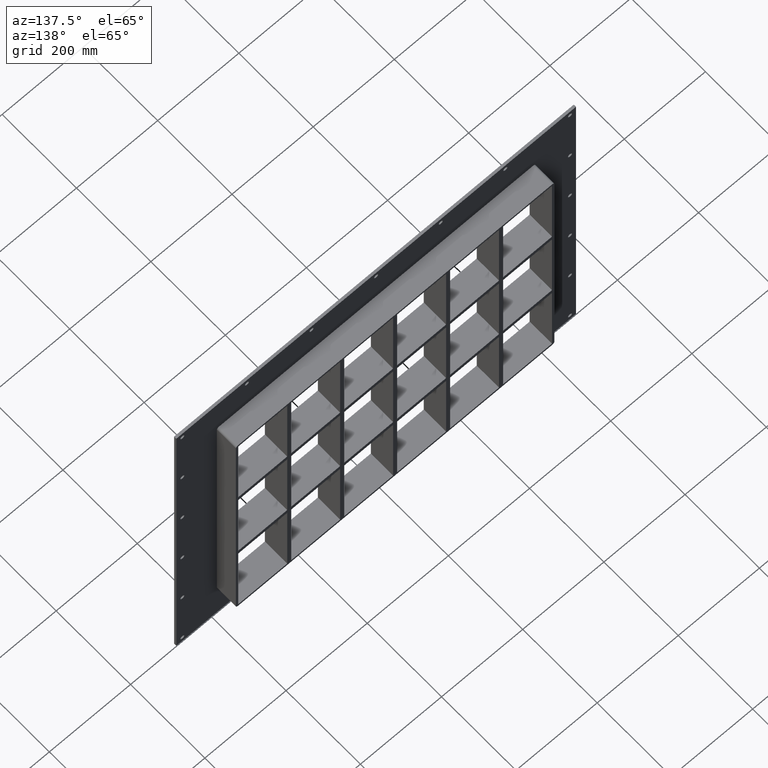
[diagram: clean part render]
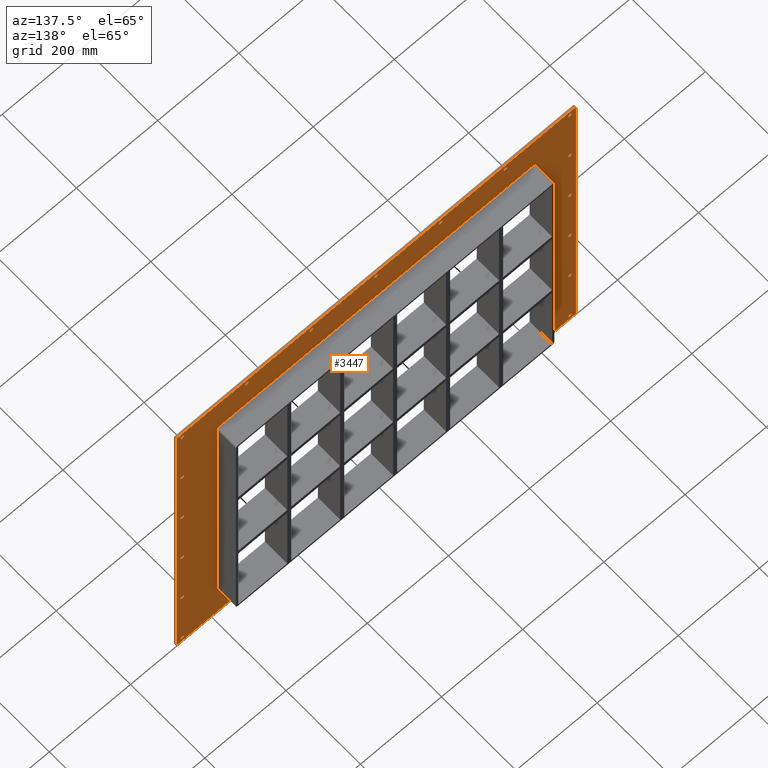
[diagram: same view with one face highlighted and labeled with its STEP entity id]
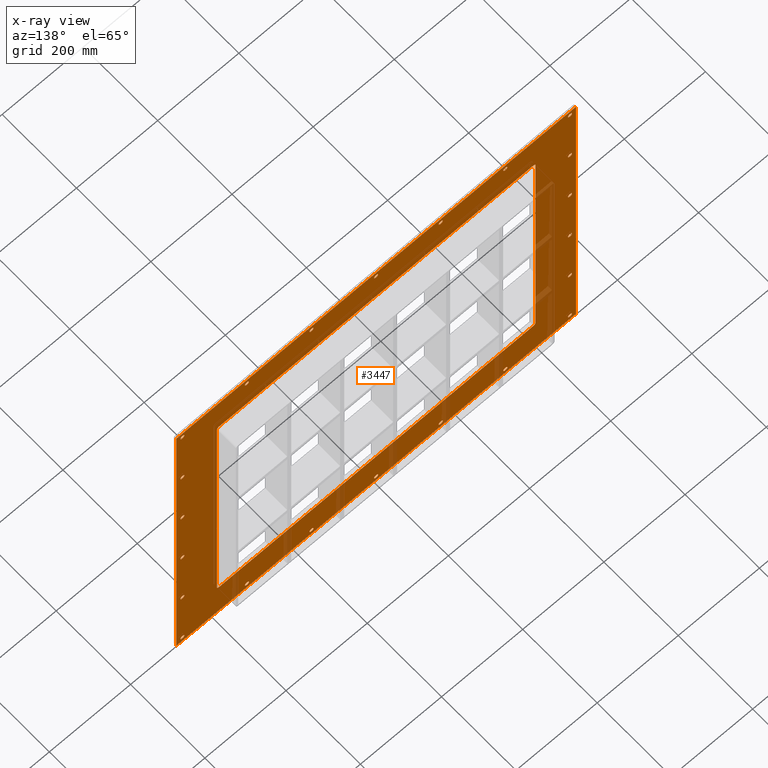
[diagram: x-ray of the same camera — body ghosted, the highlighted face saturated]
A machine part, auxiliary view. The second image highlights one B-rep face of the part: STEP entity #3447.
The next image is the same camera in x-ray: the body ghosted, the highlighted face saturated — about 7% of this face is hidden behind the body in this view.
In plain terms, the highlighted planar face has unit normal (0, 1, 0).
Its self-contained STEP definition (entity closure, byte-faithful):
#73=CARTESIAN_POINT('',(-482.50000000000006,5.999999999999943,-430.00000000000011));
#74=VERTEX_POINT('',#73);
#75=CARTESIAN_POINT('',(-477.50000000000006,5.999999999999943,-430.00000000000011));
#76=DIRECTION('',(0.0,-1.0,0.0));
#77=DIRECTION('',(1.0,0.0,0.0));
#78=AXIS2_PLACEMENT_3D('',#75,#76,#77);
#79=CIRCLE('',#78,5.0);
#80=EDGE_CURVE('',#74,#74,#79,.T.);
#101=CARTESIAN_POINT('',(472.69999999999987,5.999999999999943,-258.00000000000006));
#102=VERTEX_POINT('',#101);
#103=CARTESIAN_POINT('',(477.69999999999987,5.999999999999943,-258.00000000000006));
#104=DIRECTION('',(0.0,-1.0,0.0));
#105=DIRECTION('',(1.0,0.0,0.0));
#106=AXIS2_PLACEMENT_3D('',#103,#104,#105);
#107=CIRCLE('',#106,5.0);
#108=EDGE_CURVE('',#102,#102,#107,.T.);
#129=CARTESIAN_POINT('',(-482.50000000000006,5.999999999999943,-258.00000000000006));
#130=VERTEX_POINT('',#129);
#131=CARTESIAN_POINT('',(-477.50000000000006,5.999999999999943,-258.00000000000006));
#132=DIRECTION('',(0.0,-1.0,0.0));
#133=DIRECTION('',(1.0,0.0,0.0));
#134=AXIS2_PLACEMENT_3D('',#131,#132,#133);
#135=CIRCLE('',#134,5.0);
#136=EDGE_CURVE('',#130,#130,#135,.T.);
#157=CARTESIAN_POINT('',(472.69999999999987,5.999999999999943,-86.000000000000057));
#158=VERTEX_POINT('',#157);
#159=CARTESIAN_POINT('',(477.69999999999987,5.999999999999943,-86.000000000000057));
#160=DIRECTION('',(0.0,-1.0,0.0));
#161=DIRECTION('',(1.0,0.0,0.0));
#162=AXIS2_PLACEMENT_3D('',#159,#160,#161);
#163=CIRCLE('',#162,5.0);
#164=EDGE_CURVE('',#158,#158,#163,.T.);
#185=CARTESIAN_POINT('',(-482.50000000000006,5.999999999999943,-86.000000000000057));
#186=VERTEX_POINT('',#185);
#187=CARTESIAN_POINT('',(-477.50000000000006,5.999999999999943,-86.000000000000057));
#188=DIRECTION('',(0.0,-1.0,0.0));
#189=DIRECTION('',(1.0,0.0,0.0));
#190=AXIS2_PLACEMENT_3D('',#187,#188,#189);
#191=CIRCLE('',#190,5.0);
#192=EDGE_CURVE('',#186,#186,#191,.T.);
#213=CARTESIAN_POINT('',(472.69999999999987,5.999999999999943,85.999999999999872));
#214=VERTEX_POINT('',#213);
#215=CARTESIAN_POINT('',(477.69999999999987,5.999999999999943,85.999999999999872));
#216=DIRECTION('',(0.0,-1.0,0.0));
#217=DIRECTION('',(1.0,0.0,0.0));
#218=AXIS2_PLACEMENT_3D('',#215,#216,#217);
#219=CIRCLE('',#218,5.0);
#220=EDGE_CURVE('',#214,#214,#219,.T.);
#241=CARTESIAN_POINT('',(-482.50000000000006,5.999999999999943,85.999999999999872));
#242=VERTEX_POINT('',#241);
#243=CARTESIAN_POINT('',(-477.50000000000006,5.999999999999943,85.999999999999872));
#244=DIRECTION('',(0.0,-1.0,0.0));
#245=DIRECTION('',(1.0,0.0,0.0));
#246=AXIS2_PLACEMENT_3D('',#243,#244,#245);
#247=CIRCLE('',#246,5.0);
#248=EDGE_CURVE('',#242,#242,#247,.T.);
#269=CARTESIAN_POINT('',(472.69999999999987,5.999999999999943,257.99999999999989));
#270=VERTEX_POINT('',#269);
#271=CARTESIAN_POINT('',(477.69999999999987,5.999999999999943,257.99999999999989));
#272=DIRECTION('',(0.0,-1.0,0.0));
#273=DIRECTION('',(1.0,0.0,0.0));
#274=AXIS2_PLACEMENT_3D('',#271,#272,#273);
#275=CIRCLE('',#274,5.0);
#276=EDGE_CURVE('',#270,#270,#275,.T.);
#297=CARTESIAN_POINT('',(-482.50000000000006,5.999999999999943,257.99999999999989));
#298=VERTEX_POINT('',#297);
#299=CARTESIAN_POINT('',(-477.50000000000006,5.999999999999943,257.99999999999989));
#300=DIRECTION('',(0.0,-1.0,0.0));
#301=DIRECTION('',(1.0,0.0,0.0));
#302=AXIS2_PLACEMENT_3D('',#299,#300,#301);
#303=CIRCLE('',#302,5.0);
#304=EDGE_CURVE('',#298,#298,#303,.T.);
#325=CARTESIAN_POINT('',(-323.30000000000007,5.999999999999943,429.99999999999989));
#326=VERTEX_POINT('',#325);
#327=CARTESIAN_POINT('',(-318.30000000000007,5.999999999999943,429.99999999999989));
#328=DIRECTION('',(0.0,-1.0,0.0));
#329=DIRECTION('',(1.0,0.0,0.0));
#330=AXIS2_PLACEMENT_3D('',#327,#328,#329);
#331=CIRCLE('',#330,5.0);
#332=EDGE_CURVE('',#326,#326,#331,.T.);
#353=CARTESIAN_POINT('',(-323.30000000000007,5.999999999999943,-430.00000000000011));
#354=VERTEX_POINT('',#353);
#355=CARTESIAN_POINT('',(-318.30000000000007,5.999999999999943,-430.00000000000011));
#356=DIRECTION('',(0.0,-1.0,0.0));
#357=DIRECTION('',(1.0,0.0,0.0));
#358=AXIS2_PLACEMENT_3D('',#355,#356,#357);
#359=CIRCLE('',#358,5.0);
#360=EDGE_CURVE('',#354,#354,#359,.T.);
#381=CARTESIAN_POINT('',(-164.10000000000011,5.999999999999943,429.99999999999989));
#382=VERTEX_POINT('',#381);
#383=CARTESIAN_POINT('',(-159.10000000000008,5.999999999999943,429.99999999999989));
#384=DIRECTION('',(0.0,-1.0,0.0));
#385=DIRECTION('',(1.0,0.0,0.0));
#386=AXIS2_PLACEMENT_3D('',#383,#384,#385);
#387=CIRCLE('',#386,5.0);
#388=EDGE_CURVE('',#382,#382,#387,.T.);
#409=CARTESIAN_POINT('',(-164.10000000000011,5.999999999999943,-430.00000000000011));
#410=VERTEX_POINT('',#409);
#411=CARTESIAN_POINT('',(-159.10000000000008,5.999999999999943,-430.00000000000011));
#412=DIRECTION('',(0.0,-1.0,0.0));
#413=DIRECTION('',(1.0,0.0,0.0));
#414=AXIS2_PLACEMENT_3D('',#411,#412,#413);
#415=CIRCLE('',#414,5.0);
#416=EDGE_CURVE('',#410,#410,#415,.T.);
#437=CARTESIAN_POINT('',(-4.900000000000073,5.999999999999943,429.99999999999989));
#438=VERTEX_POINT('',#437);
#439=CARTESIAN_POINT('',(0.099999999999927,5.999999999999943,429.99999999999989));
#440=DIRECTION('',(0.0,-1.0,0.0));
#441=DIRECTION('',(1.0,0.0,0.0));
#442=AXIS2_PLACEMENT_3D('',#439,#440,#441);
#443=CIRCLE('',#442,5.0);
#444=EDGE_CURVE('',#438,#438,#443,.T.);
#465=CARTESIAN_POINT('',(-4.900000000000073,5.999999999999943,-430.00000000000011));
#466=VERTEX_POINT('',#465);
#467=CARTESIAN_POINT('',(0.099999999999927,5.999999999999943,-430.00000000000011));
#468=DIRECTION('',(0.0,-1.0,0.0));
#469=DIRECTION('',(1.0,0.0,0.0));
#470=AXIS2_PLACEMENT_3D('',#467,#468,#469);
#471=CIRCLE('',#470,5.0);
#472=EDGE_CURVE('',#466,#466,#471,.T.);
#493=CARTESIAN_POINT('',(154.29999999999987,5.999999999999943,429.99999999999989));
#494=VERTEX_POINT('',#493);
#495=CARTESIAN_POINT('',(159.29999999999987,5.999999999999943,429.99999999999989));
#496=DIRECTION('',(0.0,-1.0,0.0));
#497=DIRECTION('',(1.0,0.0,0.0));
#498=AXIS2_PLACEMENT_3D('',#495,#496,#497);
#499=CIRCLE('',#498,5.0);
#500=EDGE_CURVE('',#494,#494,#499,.T.);
#521=CARTESIAN_POINT('',(154.29999999999987,5.999999999999943,-430.00000000000011));
#522=VERTEX_POINT('',#521);
#523=CARTESIAN_POINT('',(159.29999999999987,5.999999999999943,-430.00000000000011));
#524=DIRECTION('',(0.0,-1.0,0.0));
#525=DIRECTION('',(1.0,0.0,0.0));
#526=AXIS2_PLACEMENT_3D('',#523,#524,#525);
#527=CIRCLE('',#526,5.0);
#528=EDGE_CURVE('',#522,#522,#527,.T.);
#549=CARTESIAN_POINT('',(313.49999999999989,5.999999999999943,429.99999999999989));
#550=VERTEX_POINT('',#549);
#551=CARTESIAN_POINT('',(318.49999999999989,5.999999999999943,429.99999999999989));
#552=DIRECTION('',(0.0,-1.0,0.0));
#553=DIRECTION('',(1.0,0.0,0.0));
#554=AXIS2_PLACEMENT_3D('',#551,#552,#553);
#555=CIRCLE('',#554,5.0);
#556=EDGE_CURVE('',#550,#550,#555,.T.);
#577=CARTESIAN_POINT('',(313.49999999999989,5.999999999999943,-430.00000000000011));
#578=VERTEX_POINT('',#577);
#579=CARTESIAN_POINT('',(318.49999999999989,5.999999999999943,-430.00000000000011));
#580=DIRECTION('',(0.0,-1.0,0.0));
#581=DIRECTION('',(1.0,0.0,0.0));
#582=AXIS2_PLACEMENT_3D('',#579,#580,#581);
#583=CIRCLE('',#582,5.0);
#584=EDGE_CURVE('',#578,#578,#583,.T.);
#605=CARTESIAN_POINT('',(472.69999999999987,5.999999999999943,-430.00000000000011));
#606=VERTEX_POINT('',#605);
#607=CARTESIAN_POINT('',(477.69999999999987,5.999999999999943,-430.00000000000011));
#608=DIRECTION('',(0.0,-1.0,0.0));
#609=DIRECTION('',(1.0,0.0,0.0));
#610=AXIS2_PLACEMENT_3D('',#607,#608,#609);
#611=CIRCLE('',#610,5.0);
#612=EDGE_CURVE('',#606,#606,#611,.T.);
#633=CARTESIAN_POINT('',(-482.50000000000006,5.999999999999943,429.99999999999989));
#634=VERTEX_POINT('',#633);
#635=CARTESIAN_POINT('',(-477.50000000000006,5.999999999999943,429.99999999999989));
#636=DIRECTION('',(0.0,-1.0,0.0));
#637=DIRECTION('',(1.0,0.0,0.0));
#638=AXIS2_PLACEMENT_3D('',#635,#636,#637);
#639=CIRCLE('',#638,5.0);
#640=EDGE_CURVE('',#634,#634,#639,.T.);
#661=CARTESIAN_POINT('',(472.69999999999987,5.999999999999943,429.99999999999989));
#662=VERTEX_POINT('',#661);
#663=CARTESIAN_POINT('',(477.69999999999987,5.999999999999943,429.99999999999989));
#664=DIRECTION('',(0.0,-1.0,0.0));
#665=DIRECTION('',(1.0,0.0,0.0));
#666=AXIS2_PLACEMENT_3D('',#663,#664,#665);
#667=CIRCLE('',#666,5.0);
#668=EDGE_CURVE('',#662,#662,#667,.T.);
#3272=CARTESIAN_POINT('',(0.0,6.000000000000001,-3.637979E-014));
#3273=DIRECTION('',(0.0,1.0,0.0));
#3274=DIRECTION('',(0.0,0.0,1.0));
#3275=AXIS2_PLACEMENT_3D('',#3272,#3273,#3274);
#3276=PLANE('',#3275);
#3277=CARTESIAN_POINT('',(-492.50000000000006,6.000000000000001,445.00000000000006));
#3278=VERTEX_POINT('',#3277);
#3279=CARTESIAN_POINT('',(492.50000000000006,6.000000000000001,445.00000000000006));
#3280=VERTEX_POINT('',#3279);
#3281=CARTESIAN_POINT('',(-492.50000000000006,6.000000000000001,445.00000000000006));
#3282=DIRECTION('',(1.0,0.0,0.0));
#3283=VECTOR('',#3282,985.00000000000011);
#3284=LINE('',#3281,#3283);
#3285=EDGE_CURVE('',#3278,#3280,#3284,.T.);
#3286=ORIENTED_EDGE('',*,*,#3285,.T.);
#3287=CARTESIAN_POINT('',(492.50000000000006,6.000000000000001,-445.00000000000023));
#3288=VERTEX_POINT('',#3287);
#3289=CARTESIAN_POINT('',(492.50000000000006,6.000000000000001,445.00000000000006));
#3290=DIRECTION('',(0.0,0.0,-1.0));
#3291=VECTOR('',#3290,890.00000000000023);
#3292=LINE('',#3289,#3291);
#3293=EDGE_CURVE('',#3280,#3288,#3292,.T.);
#3294=ORIENTED_EDGE('',*,*,#3293,.T.);
#3295=CARTESIAN_POINT('',(-492.50000000000006,6.000000000000001,-445.00000000000023));
#3296=VERTEX_POINT('',#3295);
#3297=CARTESIAN_POINT('',(492.50000000000006,6.000000000000001,-445.00000000000011));
#3298=DIRECTION('',(-1.0,0.0,0.0));
#3299=VECTOR('',#3298,985.00000000000011);
#3300=LINE('',#3297,#3299);
#3301=EDGE_CURVE('',#3288,#3296,#3300,.T.);
#3302=ORIENTED_EDGE('',*,*,#3301,.T.);
#3303=CARTESIAN_POINT('',(-492.50000000000006,6.000000000000001,-445.00000000000011));
#3304=DIRECTION('',(0.0,0.0,1.0));
#3305=VECTOR('',#3304,890.00000000000023);
#3306=LINE('',#3303,#3305);
#3307=EDGE_CURVE('',#3296,#3278,#3306,.T.);
#3308=ORIENTED_EDGE('',*,*,#3307,.T.);
#3309=EDGE_LOOP('',(#3286,#3294,#3302,#3308));
#3310=FACE_OUTER_BOUND('',#3309,.T.);
#3311=ORIENTED_EDGE('',*,*,#80,.T.);
#3312=EDGE_LOOP('',(#3311));
#3313=FACE_BOUND('',#3312,.T.);
#3314=ORIENTED_EDGE('',*,*,#108,.T.);
#3315=EDGE_LOOP('',(#3314));
#3316=FACE_BOUND('',#3315,.T.);
#3317=ORIENTED_EDGE('',*,*,#136,.T.);
#3318=EDGE_LOOP('',(#3317));
#3319=FACE_BOUND('',#3318,.T.);
#3320=ORIENTED_EDGE('',*,*,#164,.T.);
#3321=EDGE_LOOP('',(#3320));
#3322=FACE_BOUND('',#3321,.T.);
#3323=ORIENTED_EDGE('',*,*,#192,.T.);
#3324=EDGE_LOOP('',(#3323));
#3325=FACE_BOUND('',#3324,.T.);
#3326=ORIENTED_EDGE('',*,*,#220,.T.);
#3327=EDGE_LOOP('',(#3326));
#3328=FACE_BOUND('',#3327,.T.);
#3329=ORIENTED_EDGE('',*,*,#248,.T.);
#3330=EDGE_LOOP('',(#3329));
#3331=FACE_BOUND('',#3330,.T.);
#3332=ORIENTED_EDGE('',*,*,#276,.T.);
#3333=EDGE_LOOP('',(#3332));
#3334=FACE_BOUND('',#3333,.T.);
#3335=ORIENTED_EDGE('',*,*,#304,.T.);
#3336=EDGE_LOOP('',(#3335));
#3337=FACE_BOUND('',#3336,.T.);
#3338=ORIENTED_EDGE('',*,*,#332,.T.);
#3339=EDGE_LOOP('',(#3338));
#3340=FACE_BOUND('',#3339,.T.);
#3341=ORIENTED_EDGE('',*,*,#360,.T.);
#3342=EDGE_LOOP('',(#3341));
#3343=FACE_BOUND('',#3342,.T.);
#3344=ORIENTED_EDGE('',*,*,#388,.T.);
#3345=EDGE_LOOP('',(#3344));
#3346=FACE_BOUND('',#3345,.T.);
#3347=ORIENTED_EDGE('',*,*,#416,.T.);
#3348=EDGE_LOOP('',(#3347));
#3349=FACE_BOUND('',#3348,.T.);
#3350=ORIENTED_EDGE('',*,*,#444,.T.);
#3351=EDGE_LOOP('',(#3350));
#3352=FACE_BOUND('',#3351,.T.);
#3353=ORIENTED_EDGE('',*,*,#472,.T.);
#3354=EDGE_LOOP('',(#3353));
#3355=FACE_BOUND('',#3354,.T.);
#3356=ORIENTED_EDGE('',*,*,#500,.T.);
#3357=EDGE_LOOP('',(#3356));
#3358=FACE_BOUND('',#3357,.T.);
#3359=ORIENTED_EDGE('',*,*,#528,.T.);
#3360=EDGE_LOOP('',(#3359));
#3361=FACE_BOUND('',#3360,.T.);
#3362=ORIENTED_EDGE('',*,*,#556,.T.);
#3363=EDGE_LOOP('',(#3362));
#3364=FACE_BOUND('',#3363,.T.);
#3365=ORIENTED_EDGE('',*,*,#584,.T.);
#3366=EDGE_LOOP('',(#3365));
#3367=FACE_BOUND('',#3366,.T.);
#3368=ORIENTED_EDGE('',*,*,#612,.T.);
#3369=EDGE_LOOP('',(#3368));
#3370=FACE_BOUND('',#3369,.T.);
#3371=ORIENTED_EDGE('',*,*,#640,.T.);
#3372=EDGE_LOOP('',(#3371));
#3373=FACE_BOUND('',#3372,.T.);
#3374=ORIENTED_EDGE('',*,*,#668,.T.);
#3375=EDGE_LOOP('',(#3374));
#3376=FACE_BOUND('',#3375,.T.);
#3377=CARTESIAN_POINT('',(-386.50000000000006,6.000000000000001,-345.00000000000006));
#3378=VERTEX_POINT('',#3377);
#3379=CARTESIAN_POINT('',(-392.50000000000006,6.000000000000001,-339.00000000000006));
#3380=VERTEX_POINT('',#3379);
#3381=CARTESIAN_POINT('',(-386.50000000000006,6.000000000000001,-339.00000000000006));
#3382=DIRECTION('',(0.0,1.0,0.0));
#3383=DIRECTION('',(-0.707106781186548,0.0,-0.707106781186548));
#3384=AXIS2_PLACEMENT_3D('',#3381,#3382,#3383);
#3385=CIRCLE('',#3384,6.000000000000002);
#3386=EDGE_CURVE('',#3378,#3380,#3385,.T.);
#3387=ORIENTED_EDGE('',*,*,#3386,.F.);
#3388=CARTESIAN_POINT('',(386.50000000000006,6.000000000000001,-345.00000000000006));
#3389=VERTEX_POINT('',#3388);
#3390=CARTESIAN_POINT('',(386.50000000000006,6.000000000000001,-345.00000000000006));
#3391=DIRECTION('',(-1.0,0.0,0.0));
#3392=VECTOR('',#3391,773.0);
#3393=LINE('',#3390,#3392);
#3394=EDGE_CURVE('',#3389,#3378,#3393,.T.);
#3395=ORIENTED_EDGE('',*,*,#3394,.F.);
#3396=CARTESIAN_POINT('',(392.50000000000006,6.000000000000001,-339.00000000000006));
#3397=VERTEX_POINT('',#3396);
#3398=CARTESIAN_POINT('',(386.50000000000006,6.000000000000001,-339.00000000000006));
#3399=DIRECTION('',(0.0,1.0,0.0));
#3400=DIRECTION('',(0.707106781186548,0.0,-0.707106781186548));
#3401=AXIS2_PLACEMENT_3D('',#3398,#3399,#3400);
#3402=CIRCLE('',#3401,6.000000000000002);
#3403=EDGE_CURVE('',#3397,#3389,#3402,.T.);
#3404=ORIENTED_EDGE('',*,*,#3403,.F.);
#3405=CARTESIAN_POINT('',(392.50000000000006,6.000000000000001,339.00000000000006));
#3406=VERTEX_POINT('',#3405);
#3407=CARTESIAN_POINT('',(392.50000000000006,6.000000000000001,339.00000000000006));
#3408=DIRECTION('',(0.0,0.0,-1.0));
#3409=VECTOR('',#3408,678.00000000000011);
#3410=LINE('',#3407,#3409);
#3411=EDGE_CURVE('',#3406,#3397,#3410,.T.);
#3412=ORIENTED_EDGE('',*,*,#3411,.F.);
#3413=CARTESIAN_POINT('',(386.50000000000006,6.000000000000001,345.00000000000006));
#3414=VERTEX_POINT('',#3413);
#3415=CARTESIAN_POINT('',(386.50000000000006,6.000000000000001,339.00000000000006));
#3416=DIRECTION('',(0.0,1.0,0.0));
#3417=DIRECTION('',(0.707106781186548,0.0,0.707106781186548));
#3418=AXIS2_PLACEMENT_3D('',#3415,#3416,#3417);
#3419=CIRCLE('',#3418,6.000000000000002);
#3420=EDGE_CURVE('',#3414,#3406,#3419,.T.);
#3421=ORIENTED_EDGE('',*,*,#3420,.F.);
#3422=CARTESIAN_POINT('',(-386.50000000000006,6.000000000000001,345.00000000000006));
#3423=VERTEX_POINT('',#3422);
#3424=CARTESIAN_POINT('',(-386.50000000000006,6.000000000000001,345.00000000000006));
#3425=DIRECTION('',(1.0,0.0,0.0));
#3426=VECTOR('',#3425,773.0);
#3427=LINE('',#3424,#3426);
#3428=EDGE_CURVE('',#3423,#3414,#3427,.T.);
#3429=ORIENTED_EDGE('',*,*,#3428,.F.);
#3430=CARTESIAN_POINT('',(-392.50000000000006,6.000000000000001,339.00000000000006));
#3431=VERTEX_POINT('',#3430);
#3432=CARTESIAN_POINT('',(-386.50000000000006,6.000000000000001,339.00000000000006));
#3433=DIRECTION('',(0.0,1.0,0.0));
#3434=DIRECTION('',(-0.707106781186548,0.0,0.707106781186548));
#3435=AXIS2_PLACEMENT_3D('',#3432,#3433,#3434);
#3436=CIRCLE('',#3435,6.000000000000002);
#3437=EDGE_CURVE('',#3431,#3423,#3436,.T.);
#3438=ORIENTED_EDGE('',*,*,#3437,.F.);
#3439=CARTESIAN_POINT('',(-392.50000000000006,6.000000000000001,-339.00000000000006));
#3440=DIRECTION('',(0.0,0.0,1.0));
#3441=VECTOR('',#3440,678.00000000000011);
#3442=LINE('',#3439,#3441);
#3443=EDGE_CURVE('',#3380,#3431,#3442,.T.);
#3444=ORIENTED_EDGE('',*,*,#3443,.F.);
#3445=EDGE_LOOP('',(#3387,#3395,#3404,#3412,#3421,#3429,#3438,#3444));
#3446=FACE_BOUND('',#3445,.T.);
#3447=ADVANCED_FACE('',(#3310,#3313,#3316,#3319,#3322,#3325,#3328,#3331,#3334,#3337,#3340,#3343,#3346,#3349,#3352,#3355,#3358,#3361,#3364,#3367,#3370,#3373,#3376,#3446),#3276,.T.);